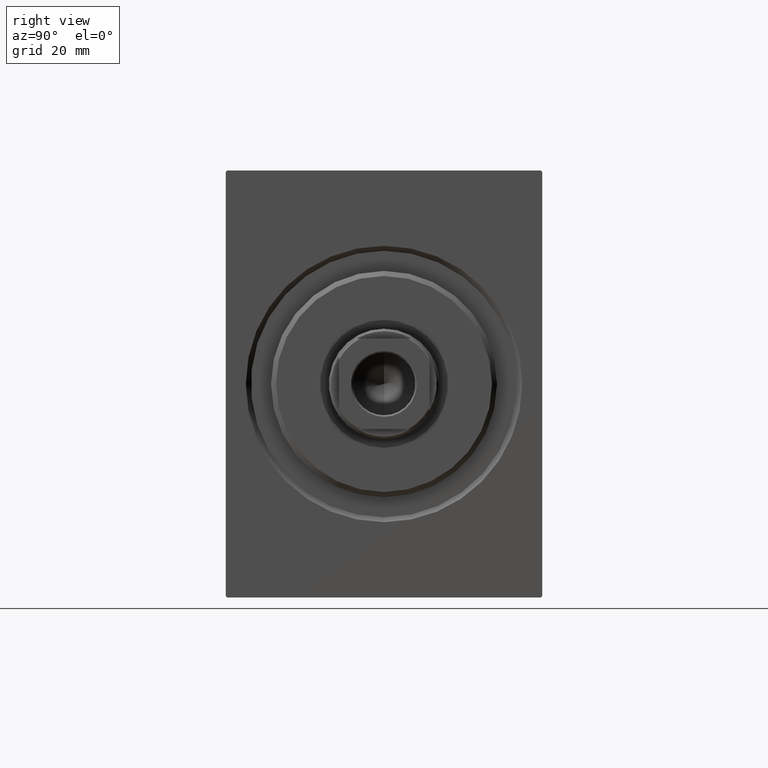
[diagram: clean part render]
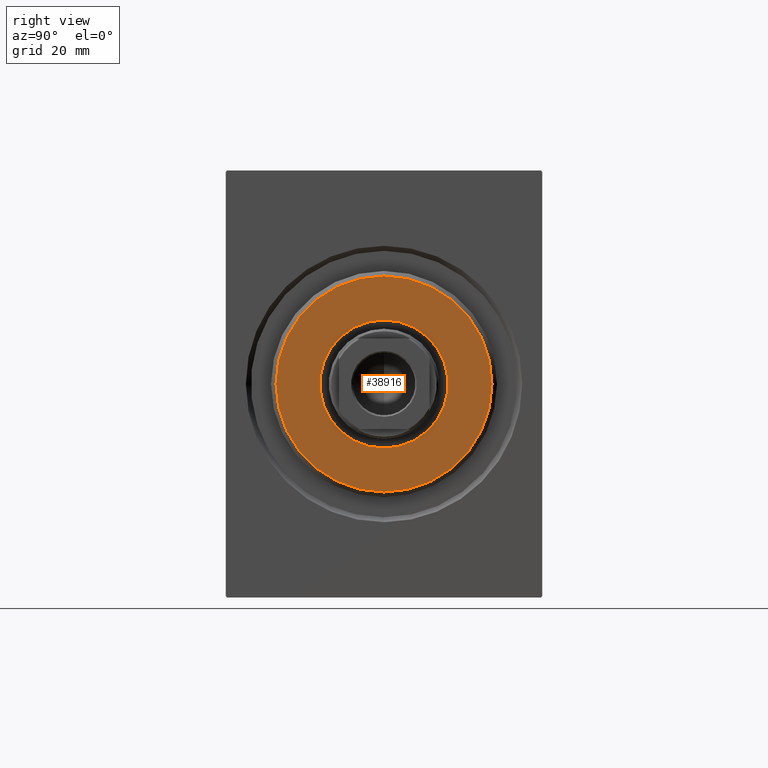
[diagram: same view with one face highlighted and labeled with its STEP entity id]
A machine part, right view. The second image highlights one B-rep face of the part: STEP entity #38916.
In plain terms, the highlighted planar face has unit normal (1, 0, 0).
Its self-contained STEP definition (entity closure, byte-faithful):
#552 = DIRECTION ( 'NONE',  ( 1.000000000000000000, -0.000000000000000000, 0.000000000000000000 ) ) ;
#1280 = CARTESIAN_POINT ( 'NONE',  ( 3.000000000000000000, 0.000000000000000000, 21.50000000000001066 ) ) ;
#1493 = CARTESIAN_POINT ( 'NONE',  ( 3.000000000000000000, 1.561424668912874914E-15, -12.75000000000000000 ) ) ;
#2108 = CARTESIAN_POINT ( 'NONE',  ( 3.000000000000000000, 2.694222958124177993E-15, -21.50000000000001066 ) ) ;
#3558 = CIRCLE ( 'NONE', #15325, 21.50000000000001066 ) ;
#3704 = CARTESIAN_POINT ( 'NONE',  ( 3.000000000000000000, 0.000000000000000000, 0.000000000000000000 ) ) ;
#4255 = AXIS2_PLACEMENT_3D ( 'NONE', #32244, #21248, #22257 ) ;
#5861 = EDGE_CURVE ( 'NONE', #37445, #26108, #12692, .T. ) ;
#7116 = VERTEX_POINT ( 'NONE', #18526 ) ;
#8007 = DIRECTION ( 'NONE',  ( -1.000000000000000000, 0.000000000000000000, -0.000000000000000000 ) ) ;
#11473 = DIRECTION ( 'NONE',  ( 1.000000000000000000, -0.000000000000000000, 0.000000000000000000 ) ) ;
#12481 = CARTESIAN_POINT ( 'NONE',  ( 3.000000000000000000, 0.000000000000000000, 0.000000000000000000 ) ) ;
#12575 = CIRCLE ( 'NONE', #24352, 12.75000000000000000 ) ;
#12692 = CIRCLE ( 'NONE', #37639, 21.50000000000001066 ) ;
#13232 = DIRECTION ( 'NONE',  ( 0.000000000000000000, 0.000000000000000000, -1.000000000000000000 ) ) ;
#14551 = ORIENTED_EDGE ( 'NONE', *, *, #5861, .T. ) ;
#15325 = AXIS2_PLACEMENT_3D ( 'NONE', #33758, #552, #17243 ) ;
#15357 = EDGE_CURVE ( 'NONE', #26108, #37445, #3558, .T. ) ;
#16058 = DIRECTION ( 'NONE',  ( 1.000000000000000000, -0.000000000000000000, 0.000000000000000000 ) ) ;
#17243 = DIRECTION ( 'NONE',  ( 0.000000000000000000, 0.000000000000000000, -1.000000000000000000 ) ) ;
#18526 = CARTESIAN_POINT ( 'NONE',  ( 3.000000000000000000, 0.000000000000000000, 12.75000000000000000 ) ) ;
#18550 = ORIENTED_EDGE ( 'NONE', *, *, #22036, .T. ) ;
#19310 = FACE_OUTER_BOUND ( 'NONE', #27127, .T. ) ;
#19472 = EDGE_LOOP ( 'NONE', ( #18550, #30557 ) ) ;
#21248 = DIRECTION ( 'NONE',  ( -1.000000000000000000, 0.000000000000000000, -0.000000000000000000 ) ) ;
#21665 = CARTESIAN_POINT ( 'NONE',  ( 3.000000000000000000, 0.000000000000000000, 0.000000000000000000 ) ) ;
#21986 = EDGE_CURVE ( 'NONE', #22128, #7116, #12575, .T. ) ;
#22036 = EDGE_CURVE ( 'NONE', #7116, #22128, #23669, .T. ) ;
#22128 = VERTEX_POINT ( 'NONE', #1493 ) ;
#22257 = DIRECTION ( 'NONE',  ( 0.000000000000000000, 0.000000000000000000, -1.000000000000000000 ) ) ;
#23669 = CIRCLE ( 'NONE', #4255, 12.75000000000000000 ) ;
#24352 = AXIS2_PLACEMENT_3D ( 'NONE', #12481, #8007, #27747 ) ;
#24525 = ORIENTED_EDGE ( 'NONE', *, *, #15357, .T. ) ;
#24626 = AXIS2_PLACEMENT_3D ( 'NONE', #3704, #16058, #13232 ) ;
#24701 = DIRECTION ( 'NONE',  ( 0.000000000000000000, 0.000000000000000000, -1.000000000000000000 ) ) ;
#26108 = VERTEX_POINT ( 'NONE', #2108 ) ;
#26477 = FACE_BOUND ( 'NONE', #19472, .T. ) ;
#27127 = EDGE_LOOP ( 'NONE', ( #14551, #24525 ) ) ;
#27747 = DIRECTION ( 'NONE',  ( 0.000000000000000000, 0.000000000000000000, -1.000000000000000000 ) ) ;
#30557 = ORIENTED_EDGE ( 'NONE', *, *, #21986, .T. ) ;
#32244 = CARTESIAN_POINT ( 'NONE',  ( 3.000000000000000000, 0.000000000000000000, 0.000000000000000000 ) ) ;
#33758 = CARTESIAN_POINT ( 'NONE',  ( 3.000000000000000000, 0.000000000000000000, 0.000000000000000000 ) ) ;
#36469 = PLANE ( 'NONE',  #24626 ) ;
#37445 = VERTEX_POINT ( 'NONE', #1280 ) ;
#37639 = AXIS2_PLACEMENT_3D ( 'NONE', #21665, #11473, #24701 ) ;
#38916 = ADVANCED_FACE ( 'NONE', ( #19310, #26477 ), #36469, .T. ) ;